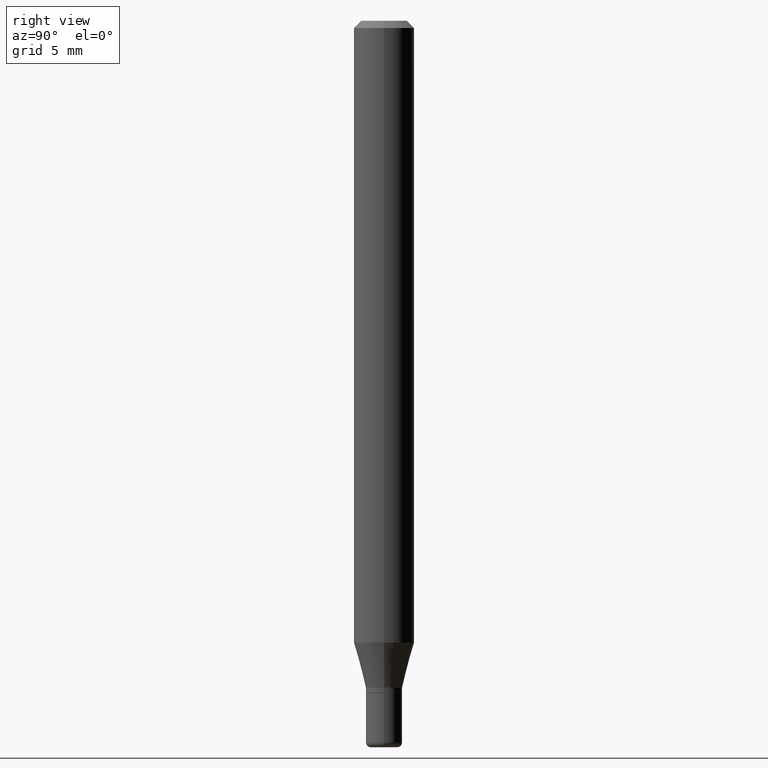
[diagram: clean part render]
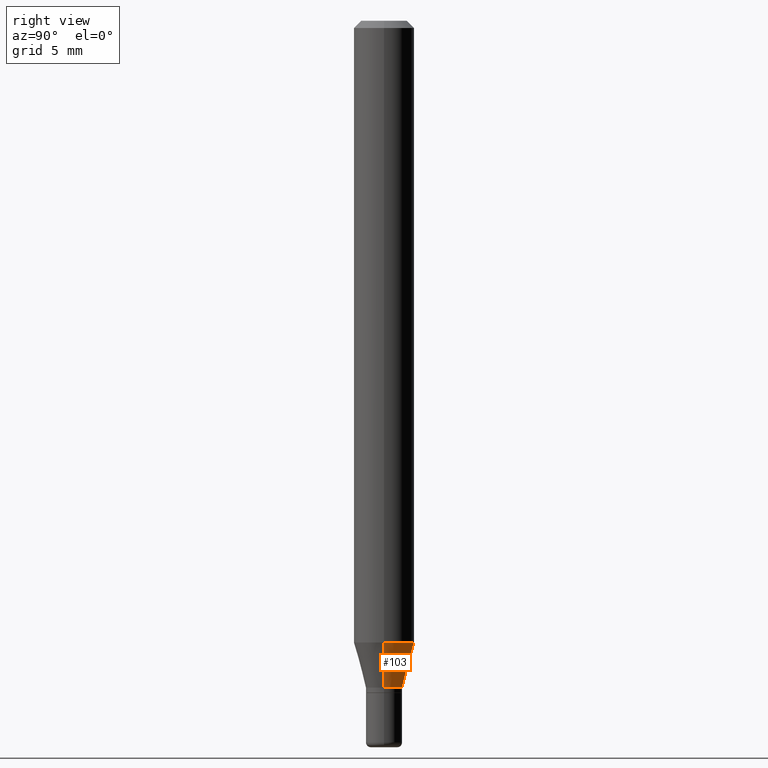
[diagram: same view with one face highlighted and labeled with its STEP entity id]
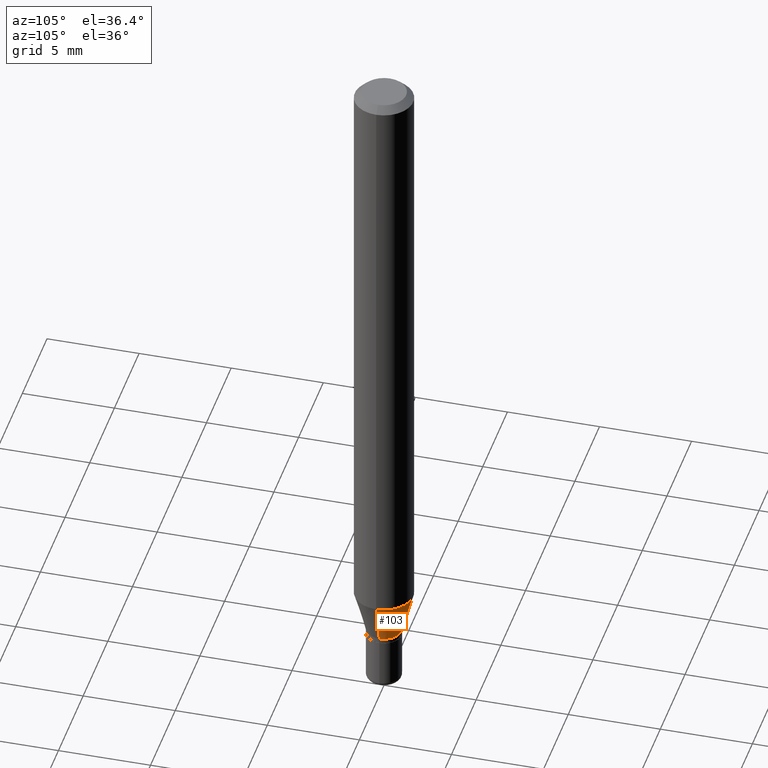
[diagram: same view with one face highlighted and labeled with its STEP entity id]
A machine part, right view. The second image highlights one B-rep face of the part: STEP entity #103.
A second angle (auxiliary view) of the same face is appended — the face is thin or edge-on in the first view.
In plain terms, the highlighted conical surface has half-angle 15 deg.
Its self-contained STEP definition (entity closure, byte-faithful):
#23 = CARTESIAN_POINT ( 'NONE',  ( 3.367410546116933466E-29, -4.807769803587011733E-15, -1.377000000000000002 ) ) ;
#30 = DIRECTION ( 'NONE',  ( -2.445468806185136597E-29, 3.491481338843145583E-15, 1.000000000000000000 ) ) ;
#68 = CARTESIAN_POINT ( 'NONE',  ( -0.03749999999999997780, -4.289618613828946171E-15, -1.377000000000000002 ) ) ;
#73 = VERTEX_POINT ( 'NONE', #167 ) ;
#74 = CARTESIAN_POINT ( 'NONE',  ( 3.367410546116933466E-29, -4.807769803587011733E-15, -1.377000000000000002 ) ) ;
#78 = VECTOR ( 'NONE', #464, 39.37007874015748143 ) ;
#91 = DIRECTION ( 'NONE',  ( 1.000000000000000000, -6.982962677686272233E-15, 0.000000000000000000 ) ) ;
#103 = ADVANCED_FACE ( 'NONE', ( #215 ), #151, .T. ) ;
#122 = EDGE_CURVE ( 'NONE', #213, #388, #386, .T. ) ;
#141 = AXIS2_PLACEMENT_3D ( 'NONE', #345, #30, #343 ) ;
#151 = CONICAL_SURFACE ( 'NONE', #451, 0.03749999999999997780, 0.2617993877991492413 ) ;
#153 = VERTEX_POINT ( 'NONE', #68 ) ;
#160 = ORIENTED_EDGE ( 'NONE', *, *, #325, .F. ) ;
#167 = CARTESIAN_POINT ( 'NONE',  ( -0.06250000000000000000, -4.037920949980918021E-15, -1.283698729810778039 ) ) ;
#187 = CARTESIAN_POINT ( 'NONE',  ( 0.03749999999999997780, -5.069630904000246734E-15, -1.377000000000000002 ) ) ;
#191 = DIRECTION ( 'NONE',  ( 1.000000000000000000, -6.982962677686272233E-15, 0.000000000000000000 ) ) ;
#213 = VERTEX_POINT ( 'NONE', #294 ) ;
#215 = FACE_OUTER_BOUND ( 'NONE', #476, .T. ) ;
#228 = DIRECTION ( 'NONE',  ( -0.2588190451025205729, 5.211531920934545520E-15, 0.9659258262890684232 ) ) ;
#259 = CARTESIAN_POINT ( 'NONE',  ( 0.06250000000000000000, -4.918445327186372307E-15, -1.283698729810778039 ) ) ;
#262 = EDGE_CURVE ( 'NONE', #153, #73, #502, .T. ) ;
#293 = ORIENTED_EDGE ( 'NONE', *, *, #122, .F. ) ;
#294 = CARTESIAN_POINT ( 'NONE',  ( 0.03749999999999997780, -5.069630904000246734E-15, -1.377000000000000002 ) ) ;
#323 = ORIENTED_EDGE ( 'NONE', *, *, #262, .T. ) ;
#325 = EDGE_CURVE ( 'NONE', #388, #73, #417, .T. ) ;
#343 = DIRECTION ( 'NONE',  ( 1.000000000000000000, -6.982962677686262766E-15, 0.000000000000000000 ) ) ;
#345 = CARTESIAN_POINT ( 'NONE',  ( 3.139245200291739433E-29, -4.482010159830980638E-15, -1.283698729810778039 ) ) ;
#347 = AXIS2_PLACEMENT_3D ( 'NONE', #74, #442, #191 ) ;
#365 = DIRECTION ( 'NONE',  ( -2.445468806185136597E-29, 3.491481338843145583E-15, 1.000000000000000000 ) ) ;
#386 = LINE ( 'NONE', #187, #78 ) ;
#388 = VERTEX_POINT ( 'NONE', #259 ) ;
#417 = CIRCLE ( 'NONE', #141, 0.06250000000000000000 ) ;
#442 = DIRECTION ( 'NONE',  ( -2.445468806185136597E-29, 3.491481338843145583E-15, 1.000000000000000000 ) ) ;
#451 = AXIS2_PLACEMENT_3D ( 'NONE', #23, #365, #91 ) ;
#452 = EDGE_CURVE ( 'NONE', #213, #153, #474, .T. ) ;
#458 = ORIENTED_EDGE ( 'NONE', *, *, #452, .T. ) ;
#464 = DIRECTION ( 'NONE',  ( 0.2588190451025205729, 1.565188264969628081E-15, 0.9659258262890684232 ) ) ;
#465 = CARTESIAN_POINT ( 'NONE',  ( -0.03749999999999997780, -4.541316277676974321E-15, -1.377000000000000002 ) ) ;
#474 = CIRCLE ( 'NONE', #347, 0.03749999999999997780 ) ;
#476 = EDGE_LOOP ( 'NONE', ( #458, #323, #160, #293 ) ) ;
#497 = VECTOR ( 'NONE', #228, 39.37007874015748143 ) ;
#502 = LINE ( 'NONE', #465, #497 ) ;